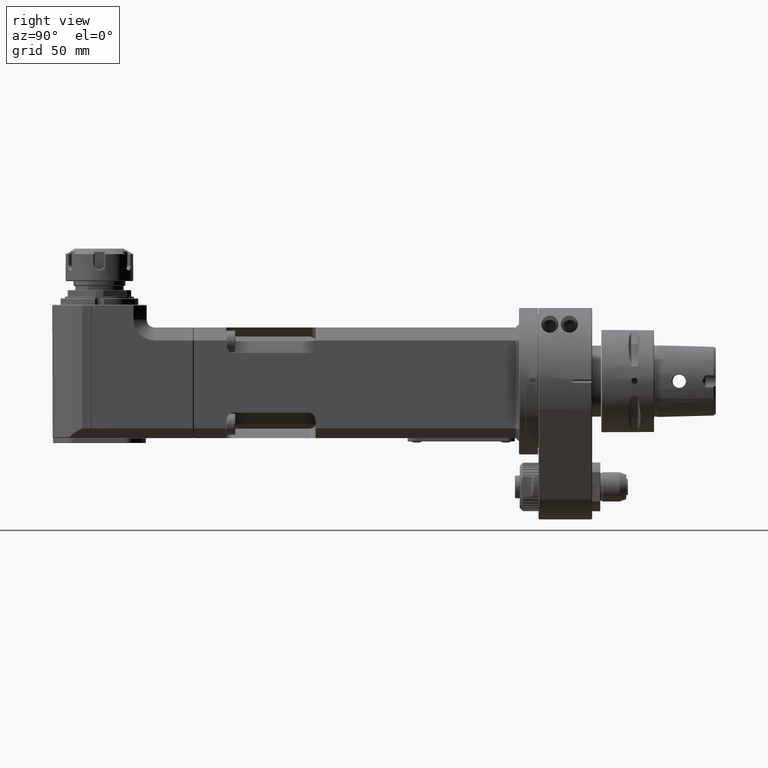
[diagram: clean part render]
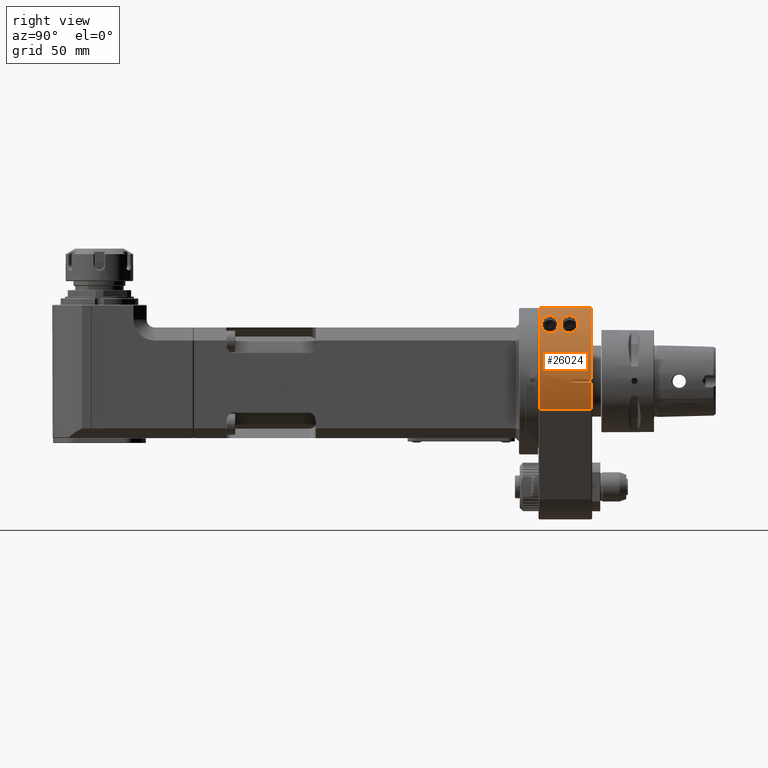
[diagram: same view with one face highlighted and labeled with its STEP entity id]
A machine part, right view. The second image highlights one B-rep face of the part: STEP entity #26024.
In plain terms, the highlighted cylindrical surface (partial cylindrical patch) has radius 45 mm, axis along (0, 1, 0).
Its self-contained STEP definition (entity closure, byte-faithful):
#1557=FACE_BOUND('',#4971,.T.);
#1558=FACE_BOUND('',#4972,.T.);
#1987=B_SPLINE_CURVE_WITH_KNOTS('',3,(#49737,#49738,#49739,#49740,#49741,
#49742,#49743,#49744,#49745,#49746,#49747,#49748,#49749,#49750,#49751,#49752,
#49753,#49754,#49755,#49756,#49757,#49758,#49759),.UNSPECIFIED.,.F.,.F.,
(4,2,2,2,2,3,2,2,2,2,4),(-1.14650177911681,-0.782118711859802,-0.417735644602789,
-0.208867822301395,-0.104433911150697,0.,0.104433911150697,0.208867822301395,
0.417735644602789,0.782118711859802,1.14650177911681),.UNSPECIFIED.);
#1988=B_SPLINE_CURVE_WITH_KNOTS('',3,(#49760,#49761,#49762,#49763,#49764,
#49765,#49766,#49767,#49768,#49769,#49770,#49771,#49772,#49773,#49774,#49775,
#49776,#49777,#49778,#49779),.UNSPECIFIED.,.F.,.F.,(4,2,2,2,2,2,2,2,2,4),
(1.14650177911681,1.42316705646968,1.69983233382254,1.91463594485582,2.02203775037247,
2.12943955588911,2.3217079428636,2.51397632983809,2.81307214595482,3.11216796207156),
 .UNSPECIFIED.);
#1989=B_SPLINE_CURVE_WITH_KNOTS('',3,(#49782,#49783,#49784,#49785,#49786,
#49787,#49788,#49789,#49790,#49791,#49792,#49793,#49794,#49795,#49796,#49797,
#49798,#49799,#49800,#49801),.UNSPECIFIED.,.F.,.F.,(4,2,2,2,2,2,2,2,2,4),
(1.12703774249658,1.40370301984945,1.68036829720231,1.89517190823559,2.00257371375224,
2.10997551926888,2.30224390624337,2.49451229321786,2.79360810933459,3.09270392545133),
 .UNSPECIFIED.);
#1990=B_SPLINE_CURVE_WITH_KNOTS('',3,(#49802,#49803,#49804,#49805,#49806,
#49807,#49808,#49809,#49810,#49811,#49812,#49813,#49814,#49815,#49816,#49817,
#49818,#49819,#49820,#49821,#49822,#49823,#49824),.UNSPECIFIED.,.F.,.F.,
(4,2,2,2,2,3,2,2,2,2,4),(3.09270392545133,3.45708699270834,3.82147005996535,
4.03033788226675,4.13477179341744,4.23920570456814,4.33003417437082,4.4208626441735,
4.72757109503348,5.0469072710491,5.36624344706473),.UNSPECIFIED.);
#3304=FACE_OUTER_BOUND('',#4970,.T.);
#4970=EDGE_LOOP('',(#23221,#23222,#23223,#23224,#23225,#23226,#23227,#23228));
#4971=EDGE_LOOP('',(#23229,#23230));
#4972=EDGE_LOOP('',(#23231,#23232));
#6237=CIRCLE('',#28177,45.);
#6241=CIRCLE('',#28183,45.);
#6386=CIRCLE('',#28485,45.);
#6387=CIRCLE('',#28488,45.);
#8012=LINE('',#48146,#10050);
#8197=LINE('',#49701,#10235);
#8207=LINE('',#49730,#10245);
#8208=LINE('',#49734,#10246);
#10050=VECTOR('',#33982,10.);
#10235=VECTOR('',#34759,32.00018990274);
#10245=VECTOR('',#34793,10.);
#10246=VECTOR('',#34798,11.4999799494804);
#12548=VERTEX_POINT('',#48112);
#12549=VERTEX_POINT('',#48116);
#12551=VERTEX_POINT('',#48121);
#12562=VERTEX_POINT('',#48154);
#12799=VERTEX_POINT('',#49699);
#12801=VERTEX_POINT('',#49720);
#12803=VERTEX_POINT('',#49728);
#12804=VERTEX_POINT('',#49732);
#12805=VERTEX_POINT('',#49735);
#12806=VERTEX_POINT('',#49736);
#12807=VERTEX_POINT('',#49780);
#12808=VERTEX_POINT('',#49781);
#15957=EDGE_CURVE('',#12548,#12549,#6237,.T.);
#15967=EDGE_CURVE('',#12548,#12551,#8012,.T.);
#15971=EDGE_CURVE('',#12562,#12551,#6241,.T.);
#16355=EDGE_CURVE('',#12799,#12549,#8197,.T.);
#16366=EDGE_CURVE('',#12799,#12801,#6386,.T.);
#16369=EDGE_CURVE('',#12803,#12801,#8207,.T.);
#16370=EDGE_CURVE('',#12803,#12804,#6387,.T.);
#16371=EDGE_CURVE('',#12562,#12804,#8208,.T.);
#16372=EDGE_CURVE('',#12805,#12806,#1987,.T.);
#16373=EDGE_CURVE('',#12806,#12805,#1988,.T.);
#16374=EDGE_CURVE('',#12807,#12808,#1989,.T.);
#16375=EDGE_CURVE('',#12808,#12807,#1990,.T.);
#23221=ORIENTED_EDGE('',*,*,#16366,.T.);
#23222=ORIENTED_EDGE('',*,*,#16369,.F.);
#23223=ORIENTED_EDGE('',*,*,#16370,.T.);
#23224=ORIENTED_EDGE('',*,*,#16371,.F.);
#23225=ORIENTED_EDGE('',*,*,#15971,.T.);
#23226=ORIENTED_EDGE('',*,*,#15967,.F.);
#23227=ORIENTED_EDGE('',*,*,#15957,.T.);
#23228=ORIENTED_EDGE('',*,*,#16355,.F.);
#23229=ORIENTED_EDGE('',*,*,#16372,.T.);
#23230=ORIENTED_EDGE('',*,*,#16373,.T.);
#23231=ORIENTED_EDGE('',*,*,#16374,.F.);
#23232=ORIENTED_EDGE('',*,*,#16375,.F.);
#24735=CYLINDRICAL_SURFACE('',#28487,45.);
#26024=ADVANCED_FACE('',(#3304,#1557,#1558),#24735,.T.);
#28177=AXIS2_PLACEMENT_3D('',#48118,#33973,#33974);
#28183=AXIS2_PLACEMENT_3D('',#48155,#33991,#33992);
#28485=AXIS2_PLACEMENT_3D('',#49724,#34787,#34788);
#28487=AXIS2_PLACEMENT_3D('',#49731,#34794,#34795);
#28488=AXIS2_PLACEMENT_3D('',#49733,#34796,#34797);
#33973=DIRECTION('center_axis',(0.,1.,0.));
#33974=DIRECTION('ref_axis',(1.,0.,2.109027738445E-8));
#33982=DIRECTION('',(0.,1.,0.));
#33991=DIRECTION('center_axis',(0.,-1.,0.));
#33992=DIRECTION('ref_axis',(0.999758397003229,0.,0.0219806192254406));
#34759=DIRECTION('',(1.46770612851E-13,-1.,-1.414415739578E-13));
#34787=DIRECTION('center_axis',(0.,-1.,0.));
#34788=DIRECTION('ref_axis',(0.923076922750328,0.,-0.384615385399212));
#34793=DIRECTION('',(0.,1.,0.));
#34794=DIRECTION('center_axis',(0.,1.,0.));
#34795=DIRECTION('ref_axis',(1.,0.,0.));
#34796=DIRECTION('center_axis',(0.,-1.,0.));
#34797=DIRECTION('ref_axis',(0.999758397003229,0.,-0.0219806192254506));
#34798=DIRECTION('',(5.7409753551518E-9,-0.999999999999966,-2.61117230017191E-7));
#48112=CARTESIAN_POINT('',(0.750000000009649,0.50022981440102,44.9937495655045));
#48116=CARTESIAN_POINT('',(41.5384615225711,0.500114907696063,-17.3076923458251));
#48118=CARTESIAN_POINT('Origin',(-8.393285966166E-13,0.5002298153949,3.170797058329E-13));
#48121=CARTESIAN_POINT('',(0.750000000011856,32.4999739345885,44.9937495654133));
#48146=CARTESIAN_POINT('',(0.75,0.,44.9937495659119));
#48154=CARTESIAN_POINT('',(44.989128046026,32.4999736150656,0.989129648273171));
#48155=CARTESIAN_POINT('Origin',(-3.67261766546E-13,32.49997393338,6.679101816145E-13));
#49699=CARTESIAN_POINT('',(41.5384614538739,32.5003083543191,-17.3076923172041));
#49701=CARTESIAN_POINT('',(41.53846152241,32.50031310292,-17.30769234576));
#49720=CARTESIAN_POINT('',(44.9891278655388,32.50061634714,-0.989127866035738));
#49724=CARTESIAN_POINT('Origin',(9.166001391305E-13,32.50061634806,1.321165499304E-13));
#49728=CARTESIAN_POINT('',(44.9891278654243,21.,-0.989127865849535));
#49730=CARTESIAN_POINT('',(44.9891278651453,0.,-0.989127865145143));
#49731=CARTESIAN_POINT('Origin',(0.,0.,0.));
#49732=CARTESIAN_POINT('',(44.9891278410214,21.,0.989127830500464));
#49733=CARTESIAN_POINT('Origin',(0.,21.,0.));
#49734=CARTESIAN_POINT('',(44.98912775313,32.49997994948,0.9891308219972));
#49735=CARTESIAN_POINT('',(28.28427124746,1.75,35.));
#49736=CARTESIAN_POINT('',(28.2842712474619,12.25,35.));
#49737=CARTESIAN_POINT('Ctrl Pts',(28.2842712474619,1.75,35.));
#49738=CARTESIAN_POINT('Ctrl Pts',(27.3395744064252,1.75,35.7634303342429));
#49739=CARTESIAN_POINT('Ctrl Pts',(26.2844532844903,1.92201917330533,36.5476501176263));
#49740=CARTESIAN_POINT('Ctrl Pts',(24.1877886998845,2.59849344728223,37.9678032398534));
#49741=CARTESIAN_POINT('Ctrl Pts',(23.1451580209524,3.09643341814543,38.6052267894512));
#49742=CARTESIAN_POINT('Ctrl Pts',(21.736027942972,4.10795048147965,39.4067759231211));
#49743=CARTESIAN_POINT('Ctrl Pts',(21.205197932326,4.57457338079454,39.6931515616155));
#49744=CARTESIAN_POINT('Ctrl Pts',(20.6004725359246,5.39847605858281,40.0084016967221));
#49745=CARTESIAN_POINT('Ctrl Pts',(20.4308787949815,5.6935599483935,40.0948518926029));
#49746=CARTESIAN_POINT('Ctrl Pts',(20.1921836667419,6.32028195020684,40.2155882536973));
#49747=CARTESIAN_POINT('Ctrl Pts',(20.1230589126007,6.65188696283101,40.25));
#49748=CARTESIAN_POINT('Ctrl Pts',(20.1230589126007,7.,40.25));
#49749=CARTESIAN_POINT('Ctrl Pts',(20.1230589126007,7.34811303716899,40.25));
#49750=CARTESIAN_POINT('Ctrl Pts',(20.1921836667419,7.67971804979316,40.2155882536973));
#49751=CARTESIAN_POINT('Ctrl Pts',(20.4308787949815,8.3064400516065,40.0948518926029));
#49752=CARTESIAN_POINT('Ctrl Pts',(20.6004725359246,8.60152394141719,40.0084016967221));
#49753=CARTESIAN_POINT('Ctrl Pts',(21.205197932326,9.42542661920546,39.6931515616155));
#49754=CARTESIAN_POINT('Ctrl Pts',(21.736027942972,9.89204951852035,39.4067759231211));
#49755=CARTESIAN_POINT('Ctrl Pts',(23.1451580209524,10.9035665818546,38.6052267894512));
#49756=CARTESIAN_POINT('Ctrl Pts',(24.1877886998846,11.4015065527178,37.9678032398534));
#49757=CARTESIAN_POINT('Ctrl Pts',(26.2844532844903,12.0779808266947,36.5476501176263));
#49758=CARTESIAN_POINT('Ctrl Pts',(27.3395744064252,12.25,35.7634303342429));
#49759=CARTESIAN_POINT('Ctrl Pts',(28.2842712474619,12.25,35.));
#49760=CARTESIAN_POINT('Ctrl Pts',(28.2842712474619,12.25,35.));
#49761=CARTESIAN_POINT('Ctrl Pts',(29.0015515961545,12.25,34.4203499444887));
#49762=CARTESIAN_POINT('Ctrl Pts',(29.7639205151206,12.1496349974932,33.7642896784261));
#49763=CARTESIAN_POINT('Ctrl Pts',(31.1742531823703,11.6505831755753,32.4666621976752));
#49764=CARTESIAN_POINT('Ctrl Pts',(31.8224991380334,11.2505436414047,31.825922438946));
#49765=CARTESIAN_POINT('Ctrl Pts',(32.7474159380966,10.2944251270807,30.8698039246219));
#49766=CARTESIAN_POINT('Ctrl Pts',(33.1199555105931,9.73942525702287,30.4665647266752));
#49767=CARTESIAN_POINT('Ctrl Pts',(33.5004710769903,8.7727316964671,30.0458680561456));
#49768=CARTESIAN_POINT('Ctrl Pts',(33.5990174805533,8.42856425585664,29.9351933925568));
#49769=CARTESIAN_POINT('Ctrl Pts',(33.7302599443358,7.72120618850676,29.7872345674845));
#49770=CARTESIAN_POINT('Ctrl Pts',(33.7629604744608,7.35800601838881,29.75));
#49771=CARTESIAN_POINT('Ctrl Pts',(33.7629604744608,6.3591053767517,29.75));
#49772=CARTESIAN_POINT('Ctrl Pts',(33.6535722435166,5.69196516153304,29.8753243939876));
#49773=CARTESIAN_POINT('Ctrl Pts',(33.2348069350089,4.49755172888651,30.3404935517149));
#49774=CARTESIAN_POINT('Ctrl Pts',(32.92521356894,3.96965246139063,30.6785341111395));
#49775=CARTESIAN_POINT('Ctrl Pts',(32.0579130177422,2.9202859878695,31.5891783172573));
#49776=CARTESIAN_POINT('Ctrl Pts',(31.3794339061692,2.45225126821455,32.2703807384322));
#49777=CARTESIAN_POINT('Ctrl Pts',(29.8806786317571,1.86725997996511,33.6629083638159));
#49778=CARTESIAN_POINT('Ctrl Pts',(29.0597048448016,1.75,34.3733550228128));
#49779=CARTESIAN_POINT('Ctrl Pts',(28.2842712474619,1.75,35.));
#49780=CARTESIAN_POINT('',(28.28427124746,13.75,35.));
#49781=CARTESIAN_POINT('',(28.2842712474619,24.25,35.));
#49782=CARTESIAN_POINT('Ctrl Pts',(28.2842712474619,13.75,35.));
#49783=CARTESIAN_POINT('Ctrl Pts',(29.0015515961545,13.75,34.4203499444887));
#49784=CARTESIAN_POINT('Ctrl Pts',(29.7639205151206,13.8503650025068,33.7642896784261));
#49785=CARTESIAN_POINT('Ctrl Pts',(31.1742531823703,14.3494168244247,32.4666621976752));
#49786=CARTESIAN_POINT('Ctrl Pts',(31.8224991380334,14.7494563585953,31.825922438946));
#49787=CARTESIAN_POINT('Ctrl Pts',(32.7474159380966,15.7055748729193,30.8698039246219));
#49788=CARTESIAN_POINT('Ctrl Pts',(33.1199555105931,16.2605747429771,30.4665647266752));
#49789=CARTESIAN_POINT('Ctrl Pts',(33.5004710769903,17.2272683035329,30.0458680561456));
#49790=CARTESIAN_POINT('Ctrl Pts',(33.5990174805533,17.5714357441434,29.9351933925568));
#49791=CARTESIAN_POINT('Ctrl Pts',(33.7302599443358,18.2787938114932,29.7872345674845));
#49792=CARTESIAN_POINT('Ctrl Pts',(33.7629604744608,18.6419939816112,29.75));
#49793=CARTESIAN_POINT('Ctrl Pts',(33.7629604744608,19.6408946232483,29.75));
#49794=CARTESIAN_POINT('Ctrl Pts',(33.6535722435166,20.308034838467,29.8753243939876));
#49795=CARTESIAN_POINT('Ctrl Pts',(33.2348069350089,21.5024482711135,30.3404935517149));
#49796=CARTESIAN_POINT('Ctrl Pts',(32.92521356894,22.0303475386094,30.6785341111395));
#49797=CARTESIAN_POINT('Ctrl Pts',(32.0579130177422,23.0797140121305,31.5891783172573));
#49798=CARTESIAN_POINT('Ctrl Pts',(31.3794339061692,23.5477487317855,32.2703807384322));
#49799=CARTESIAN_POINT('Ctrl Pts',(29.8806786317571,24.1327400200349,33.6629083638159));
#49800=CARTESIAN_POINT('Ctrl Pts',(29.0597048448016,24.25,34.3733550228128));
#49801=CARTESIAN_POINT('Ctrl Pts',(28.2842712474619,24.25,35.));
#49802=CARTESIAN_POINT('Ctrl Pts',(28.2842712474619,24.25,35.));
#49803=CARTESIAN_POINT('Ctrl Pts',(27.3395744064252,24.25,35.7634303342429));
#49804=CARTESIAN_POINT('Ctrl Pts',(26.2844532844903,24.0779808266947,36.5476501176263));
#49805=CARTESIAN_POINT('Ctrl Pts',(24.1877886998846,23.4015065527178,37.9678032398534));
#49806=CARTESIAN_POINT('Ctrl Pts',(23.1451580209524,22.9035665818546,38.6052267894512));
#49807=CARTESIAN_POINT('Ctrl Pts',(21.736027942972,21.8920495185204,39.4067759231211));
#49808=CARTESIAN_POINT('Ctrl Pts',(21.205197932326,21.4254266192055,39.6931515616155));
#49809=CARTESIAN_POINT('Ctrl Pts',(20.6004725359246,20.6015239414172,40.0084016967221));
#49810=CARTESIAN_POINT('Ctrl Pts',(20.4308787949815,20.3064400516065,40.0948518926029));
#49811=CARTESIAN_POINT('Ctrl Pts',(20.1921836667419,19.6797180497932,40.2155882536973));
#49812=CARTESIAN_POINT('Ctrl Pts',(20.1230589126007,19.348113037169,40.25));
#49813=CARTESIAN_POINT('Ctrl Pts',(20.1230589126007,19.,40.25));
#49814=CARTESIAN_POINT('Ctrl Pts',(20.1230589126007,18.6972384339911,40.25));
#49815=CARTESIAN_POINT('Ctrl Pts',(20.1798103695348,18.375721667411,40.2217557496493));
#49816=CARTESIAN_POINT('Ctrl Pts',(20.3939049512118,17.7722859383486,40.1136263996317));
#49817=CARTESIAN_POINT('Ctrl Pts',(20.5493321444653,17.4895582343389,40.0344723485156));
#49818=CARTESIAN_POINT('Ctrl Pts',(21.2660892189227,16.43879409014,39.6628473262856));
#49819=CARTESIAN_POINT('Ctrl Pts',(22.158919449635,15.7520539680295,39.1766751704882));
#49820=CARTESIAN_POINT('Ctrl Pts',(23.7582841808269,14.8042061252955,38.2288273277543));
#49821=CARTESIAN_POINT('Ctrl Pts',(24.6829448941409,14.4114641674332,37.6432754436484));
#49822=CARTESIAN_POINT('Ctrl Pts',(26.5318999397921,13.8831891092618,36.3637490110355));
#49823=CARTESIAN_POINT('Ctrl Pts',(27.456362642977,13.75,35.6690511867817));
#49824=CARTESIAN_POINT('Ctrl Pts',(28.2842712474619,13.75,35.));